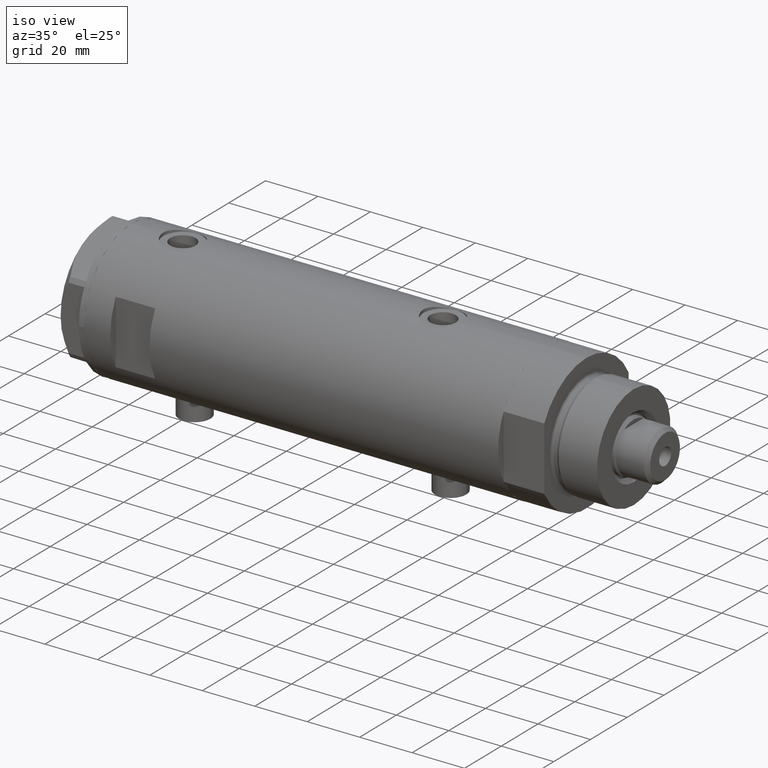
[diagram: clean part render]
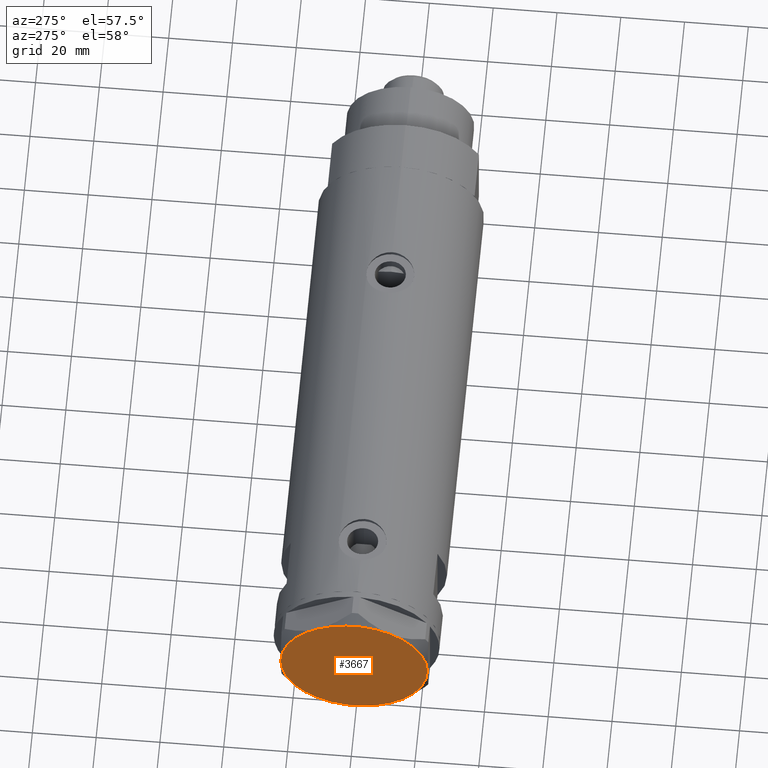
[diagram: tour spotlight — one face highlighted and labeled with its STEP entity id]
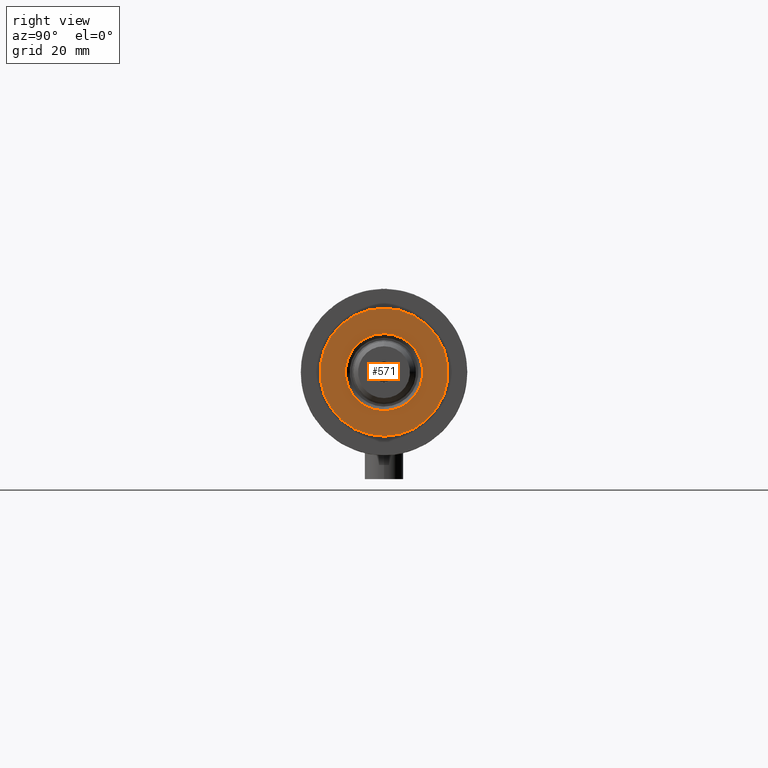
[diagram: tour spotlight — one face highlighted and labeled with its STEP entity id]
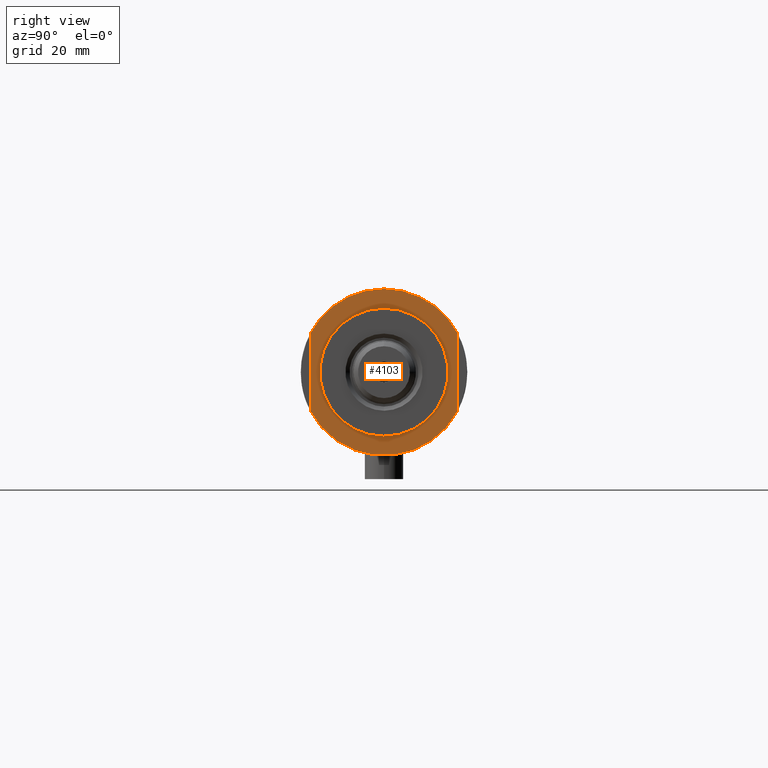
[diagram: tour spotlight — one face highlighted and labeled with its STEP entity id]
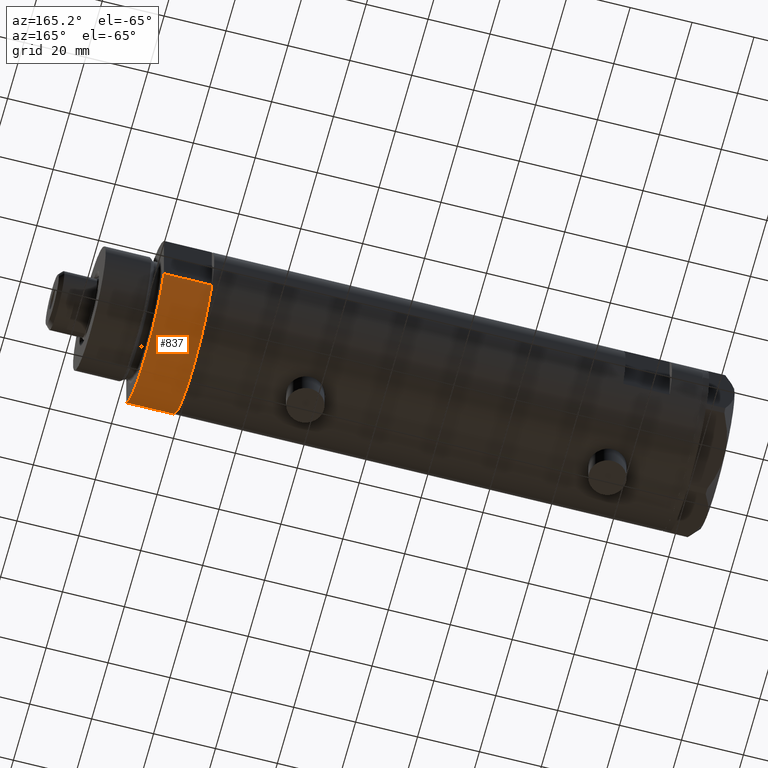
[diagram: tour spotlight — one face highlighted and labeled with its STEP entity id]
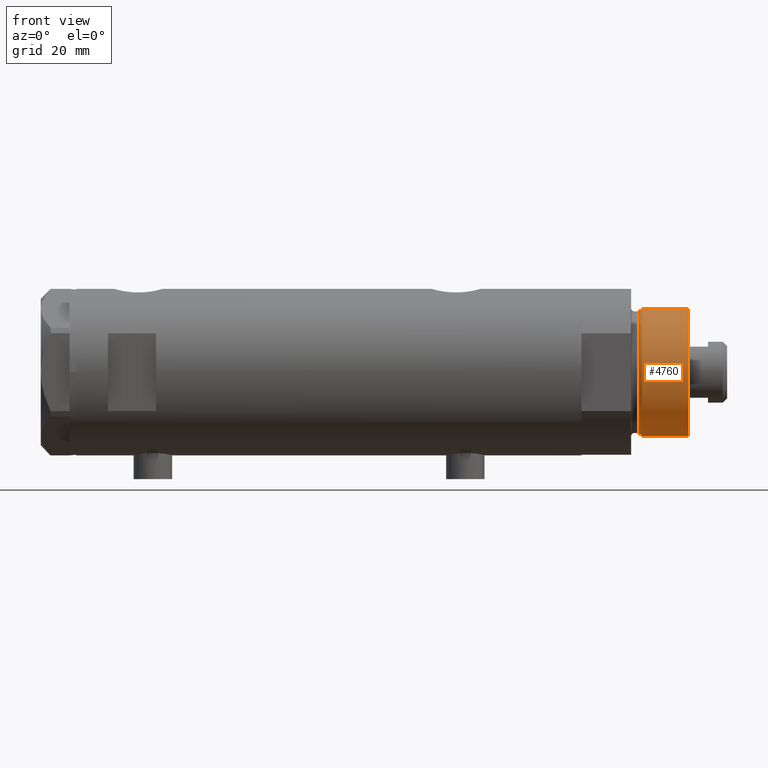
[diagram: tour spotlight — one face highlighted and labeled with its STEP entity id]
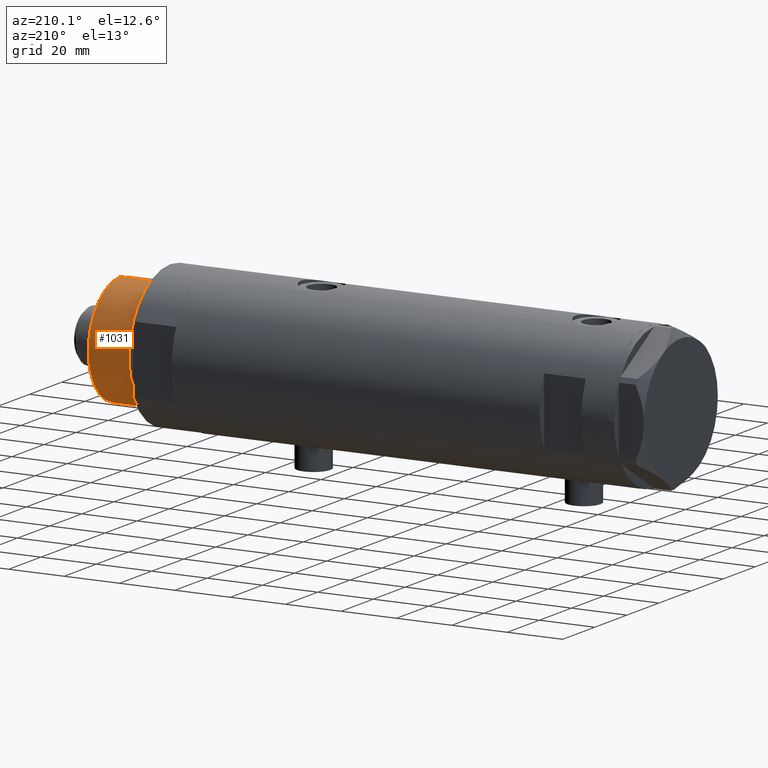
[diagram: tour spotlight — one face highlighted and labeled with its STEP entity id]
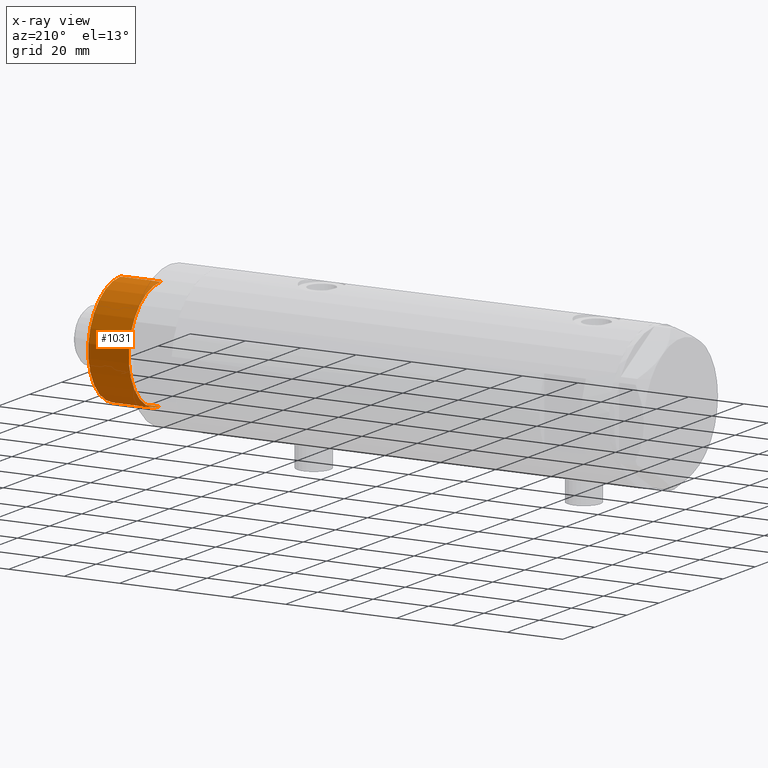
[diagram: x-ray of the same camera — body ghosted, this tour face saturated]
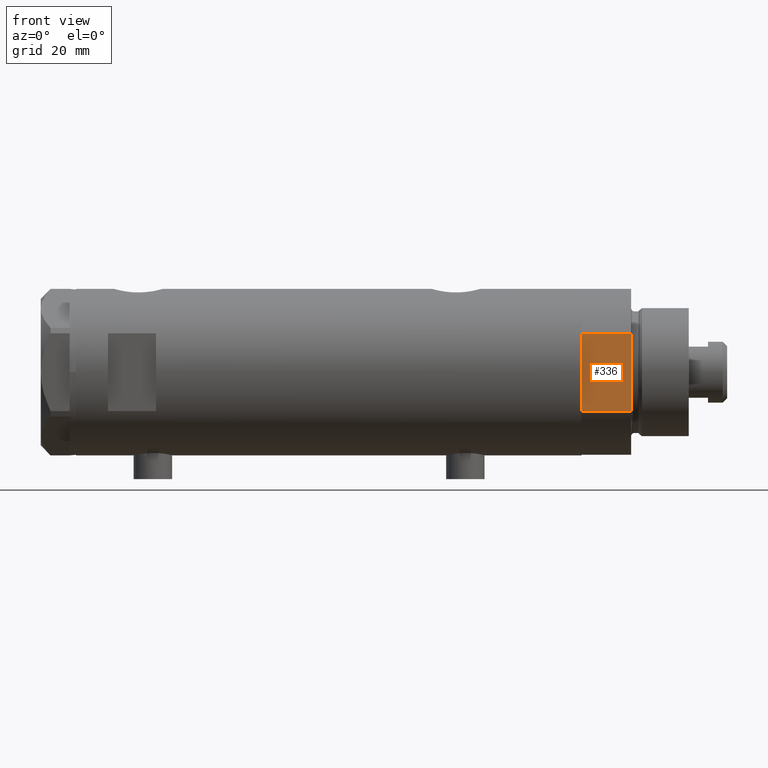
[diagram: tour spotlight — one face highlighted and labeled with its STEP entity id]
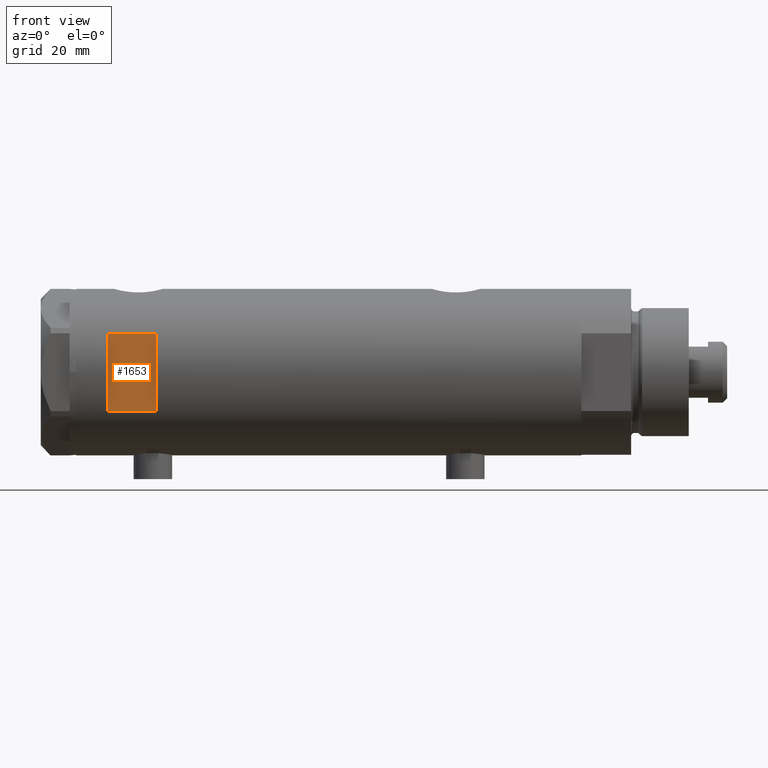
[diagram: tour spotlight — one face highlighted and labeled with its STEP entity id]
A machine part: a face-by-face anatomy tour. The part has 134 B-rep faces; the first image is the clean iso view, then the 8 largest visible faces are spotlighted one at a time (largest first), each with its STEP entity span.

Face 1 — auxiliary view, entity #3667. In plain terms, the highlighted planar face has unit normal (-1, -0, 0).
Definition (entity closure, byte-faithful):
#86 = AXIS2_PLACEMENT_3D ( 'NONE', #2016, #1323, #881 ) ;
#166 = ORIENTED_EDGE ( 'NONE', *, *, #1832, .T. ) ;
#174 = VERTEX_POINT ( 'NONE', #3255 ) ;
#216 = FACE_OUTER_BOUND ( 'NONE', #4402, .T. ) ;
#237 = ORIENTED_EDGE ( 'NONE', *, *, #4425, .T. ) ;
#296 = VERTEX_POINT ( 'NONE', #3295 ) ;
#331 = AXIS2_PLACEMENT_3D ( 'NONE', #1130, #2688, #3395 ) ;
#398 = ORIENTED_EDGE ( 'NONE', *, *, #2606, .T. ) ;
#526 = DIRECTION ( 'NONE',  ( 0.000000000000000000, 0.000000000000000000, 1.000000000000000000 ) ) ;
#578 = DIRECTION ( 'NONE',  ( 1.000000000000000000, 0.000000000000000000, 0.000000000000000000 ) ) ;
#698 = CIRCLE ( 'NONE', #3870, 23.00000000000004619 ) ;
#709 = CIRCLE ( 'NONE', #3477, 23.00000000000004619 ) ;
#881 = DIRECTION ( 'NONE',  ( 1.000000000000000000, 0.000000000000000000, 0.000000000000000000 ) ) ;
#1130 = CARTESIAN_POINT ( 'NONE',  ( 0.000000000000000000, 0.000000000000000000, 9.000000000000000000 ) ) ;
#1167 = DIRECTION ( 'NONE',  ( 1.000000000000000000, 0.000000000000000000, 0.000000000000000000 ) ) ;
#1255 = CARTESIAN_POINT ( 'NONE',  ( 0.000000000000000000, 0.000000000000000000, 9.000000000000000000 ) ) ;
#1323 = DIRECTION ( 'NONE',  ( 0.000000000000000000, 0.000000000000000000, 1.000000000000000000 ) ) ;
#1436 = AXIS2_PLACEMENT_3D ( 'NONE', #3622, #2523, #1736 ) ;
#1479 = CARTESIAN_POINT ( 'NONE',  ( 11.50000000000018296, -19.91858428704203732, 9.000000000000000000 ) ) ;
#1509 = CIRCLE ( 'NONE', #2923, 23.00000000000004619 ) ;
#1616 = CIRCLE ( 'NONE', #3412, 23.00000000000004619 ) ;
#1662 = ORIENTED_EDGE ( 'NONE', *, *, #2304, .T. ) ;
#1736 = DIRECTION ( 'NONE',  ( 1.000000000000000000, 0.000000000000000000, -0.000000000000000000 ) ) ;
#1757 = CIRCLE ( 'NONE', #331, 23.00000000000004619 ) ;
#1832 = EDGE_CURVE ( 'NONE', #2337, #4503, #698, .T. ) ;
#1927 = DIRECTION ( 'NONE',  ( 0.000000000000000000, 0.000000000000000000, 1.000000000000000000 ) ) ;
#1995 = VERTEX_POINT ( 'NONE', #1479 ) ;
#2016 = CARTESIAN_POINT ( 'NONE',  ( 0.000000000000000000, 0.000000000000000000, 9.000000000000000000 ) ) ;
#2075 = CIRCLE ( 'NONE', #86, 23.00000000000004619 ) ;
#2093 = PLANE ( 'NONE',  #1436 ) ;
#2259 = CARTESIAN_POINT ( 'NONE',  ( 0.000000000000000000, 0.000000000000000000, 9.000000000000000000 ) ) ;
#2304 = EDGE_CURVE ( 'NONE', #4503, #296, #1509, .T. ) ;
#2337 = VERTEX_POINT ( 'NONE', #3714 ) ;
#2523 = DIRECTION ( 'NONE',  ( 0.000000000000000000, 0.000000000000000000, 1.000000000000000000 ) ) ;
#2586 = DIRECTION ( 'NONE',  ( 1.000000000000000000, 0.000000000000000000, 0.000000000000000000 ) ) ;
#2606 = EDGE_CURVE ( 'NONE', #296, #4812, #2075, .T. ) ;
#2688 = DIRECTION ( 'NONE',  ( 0.000000000000000000, 0.000000000000000000, 1.000000000000000000 ) ) ;
#2824 = CARTESIAN_POINT ( 'NONE',  ( 0.000000000000000000, 0.000000000000000000, 9.000000000000000000 ) ) ;
#2826 = DIRECTION ( 'NONE',  ( 0.000000000000000000, 0.000000000000000000, 1.000000000000000000 ) ) ;
#2923 = AXIS2_PLACEMENT_3D ( 'NONE', #2824, #3266, #2586 ) ;
#2963 = ORIENTED_EDGE ( 'NONE', *, *, #3447, .T. ) ;
#3198 = CARTESIAN_POINT ( 'NONE',  ( 0.000000000000000000, 0.000000000000000000, 9.000000000000000000 ) ) ;
#3255 = CARTESIAN_POINT ( 'NONE',  ( -11.49999999999990585, -19.91858428704219364, 9.000000000000000000 ) ) ;
#3266 = DIRECTION ( 'NONE',  ( 0.000000000000000000, 0.000000000000000000, 1.000000000000000000 ) ) ;
#3295 = CARTESIAN_POINT ( 'NONE',  ( -11.50000000000004441, 19.91858428704211548, 9.000000000000000000 ) ) ;
#3331 = EDGE_CURVE ( 'NONE', #4812, #174, #709, .T. ) ;
#3334 = CARTESIAN_POINT ( 'NONE',  ( -23.00000000000004619, -8.112498833180673323E-14, 9.000000000000000000 ) ) ;
#3395 = DIRECTION ( 'NONE',  ( 1.000000000000000000, 0.000000000000000000, 0.000000000000000000 ) ) ;
#3412 = AXIS2_PLACEMENT_3D ( 'NONE', #1255, #526, #4253 ) ;
#3447 = EDGE_CURVE ( 'NONE', #1995, #2337, #1757, .T. ) ;
#3477 = AXIS2_PLACEMENT_3D ( 'NONE', #3198, #2826, #578 ) ;
#3622 = CARTESIAN_POINT ( 'NONE',  ( 0.000000000000000000, 0.000000000000000000, 9.000000000000000000 ) ) ;
#3667 = ADVANCED_FACE ( 'NONE', ( #216 ), #2093, .T. ) ;
#3714 = CARTESIAN_POINT ( 'NONE',  ( 22.99999999999995026, 2.373657066004705010E-13, 9.000000000000000000 ) ) ;
#3870 = AXIS2_PLACEMENT_3D ( 'NONE', #2259, #1927, #1167 ) ;
#3976 = ORIENTED_EDGE ( 'NONE', *, *, #3331, .T. ) ;
#4253 = DIRECTION ( 'NONE',  ( 1.000000000000000000, 0.000000000000000000, 0.000000000000000000 ) ) ;
#4402 = EDGE_LOOP ( 'NONE', ( #2963, #166, #1662, #398, #3976, #237 ) ) ;
#4425 = EDGE_CURVE ( 'NONE', #174, #1995, #1616, .T. ) ;
#4503 = VERTEX_POINT ( 'NONE', #4612 ) ;
#4612 = CARTESIAN_POINT ( 'NONE',  ( 11.49999999999990408, 19.91858428704219364, 9.000000000000000000 ) ) ;
#4812 = VERTEX_POINT ( 'NONE', #3334 ) ;

Face 2 — right view, entity #571. In plain terms, the highlighted planar face has unit normal (1, 0, -0).
Definition (entity closure, byte-faithful):
#128 = VERTEX_POINT ( 'NONE', #3809 ) ;
#307 = CIRCLE ( 'NONE', #934, 12.05000000000000426 ) ;
#326 = CIRCLE ( 'NONE', #3091, 19.99999999999999645 ) ;
#392 = CIRCLE ( 'NONE', #2830, 12.05000000000000426 ) ;
#571 = ADVANCED_FACE ( 'NONE', ( #4295, #4342 ), #3557, .T. ) ;
#925 = EDGE_CURVE ( 'NONE', #2129, #128, #307, .T. ) ;
#934 = AXIS2_PLACEMENT_3D ( 'NONE', #3177, #2787, #4279 ) ;
#965 = DIRECTION ( 'NONE',  ( 0.000000000000000000, 0.000000000000000000, 1.000000000000000000 ) ) ;
#1009 = EDGE_CURVE ( 'NONE', #128, #2129, #392, .T. ) ;
#1057 = EDGE_LOOP ( 'NONE', ( #1303, #3403 ) ) ;
#1123 = EDGE_LOOP ( 'NONE', ( #3474, #2548 ) ) ;
#1251 = CARTESIAN_POINT ( 'NONE',  ( 0.000000000000000000, 0.000000000000000000, 33.50000000000000000 ) ) ;
#1260 = DIRECTION ( 'NONE',  ( 0.000000000000000000, 0.000000000000000000, 1.000000000000000000 ) ) ;
#1303 = ORIENTED_EDGE ( 'NONE', *, *, #1009, .T. ) ;
#1722 = DIRECTION ( 'NONE',  ( 1.000000000000000000, 0.000000000000000000, 0.000000000000000000 ) ) ;
#1916 = CIRCLE ( 'NONE', #3468, 19.99999999999999645 ) ;
#1932 = CARTESIAN_POINT ( 'NONE',  ( 19.99999999999999645, 2.449293598294706119E-15, 33.50000000000000000 ) ) ;
#2129 = VERTEX_POINT ( 'NONE', #4497 ) ;
#2231 = EDGE_CURVE ( 'NONE', #4241, #4552, #1916, .T. ) ;
#2548 = ORIENTED_EDGE ( 'NONE', *, *, #2937, .T. ) ;
#2640 = CARTESIAN_POINT ( 'NONE',  ( -19.99999999999999645, 0.000000000000000000, 33.50000000000000000 ) ) ;
#2787 = DIRECTION ( 'NONE',  ( -0.000000000000000000, -0.000000000000000000, -1.000000000000000000 ) ) ;
#2830 = AXIS2_PLACEMENT_3D ( 'NONE', #4849, #4438, #4535 ) ;
#2937 = EDGE_CURVE ( 'NONE', #4552, #4241, #326, .T. ) ;
#3091 = AXIS2_PLACEMENT_3D ( 'NONE', #1251, #3462, #3121 ) ;
#3121 = DIRECTION ( 'NONE',  ( 1.000000000000000000, 0.000000000000000000, 0.000000000000000000 ) ) ;
#3177 = CARTESIAN_POINT ( 'NONE',  ( 0.000000000000000000, 0.000000000000000000, 33.50000000000000000 ) ) ;
#3315 = AXIS2_PLACEMENT_3D ( 'NONE', #4674, #965, #3911 ) ;
#3403 = ORIENTED_EDGE ( 'NONE', *, *, #925, .T. ) ;
#3462 = DIRECTION ( 'NONE',  ( 0.000000000000000000, 0.000000000000000000, 1.000000000000000000 ) ) ;
#3468 = AXIS2_PLACEMENT_3D ( 'NONE', #3503, #1260, #1722 ) ;
#3474 = ORIENTED_EDGE ( 'NONE', *, *, #2231, .T. ) ;
#3503 = CARTESIAN_POINT ( 'NONE',  ( 0.000000000000000000, 0.000000000000000000, 33.50000000000000000 ) ) ;
#3557 = PLANE ( 'NONE',  #3315 ) ;
#3809 = CARTESIAN_POINT ( 'NONE',  ( 12.05000000000000426, 0.000000000000000000, 33.50000000000000000 ) ) ;
#3911 = DIRECTION ( 'NONE',  ( 1.000000000000000000, 0.000000000000000000, -0.000000000000000000 ) ) ;
#4241 = VERTEX_POINT ( 'NONE', #2640 ) ;
#4279 = DIRECTION ( 'NONE',  ( 1.000000000000000000, 0.000000000000000000, 0.000000000000000000 ) ) ;
#4295 = FACE_BOUND ( 'NONE', #1057, .T. ) ;
#4342 = FACE_OUTER_BOUND ( 'NONE', #1123, .T. ) ;
#4438 = DIRECTION ( 'NONE',  ( -0.000000000000000000, -0.000000000000000000, -1.000000000000000000 ) ) ;
#4497 = CARTESIAN_POINT ( 'NONE',  ( -12.05000000000000426, 1.475699392972560823E-15, 33.50000000000000000 ) ) ;
#4535 = DIRECTION ( 'NONE',  ( 1.000000000000000000, 0.000000000000000000, 0.000000000000000000 ) ) ;
#4552 = VERTEX_POINT ( 'NONE', #1932 ) ;
#4674 = CARTESIAN_POINT ( 'NONE',  ( 0.000000000000000000, 0.000000000000000000, 33.50000000000000000 ) ) ;
#4849 = CARTESIAN_POINT ( 'NONE',  ( 0.000000000000000000, 0.000000000000000000, 33.50000000000000000 ) ) ;

Face 3 — right view, entity #4103. In plain terms, the highlighted planar face has unit normal (1, 0, -0).
Definition (entity closure, byte-faithful):
#34 = LINE ( 'NONE', #2347, #1505 ) ;
#339 = CARTESIAN_POINT ( 'NONE',  ( 0.000000000000000000, 0.000000000000000000, 15.50000000000000000 ) ) ;
#544 = EDGE_CURVE ( 'NONE', #4619, #3494, #34, .T. ) ;
#559 = ORIENTED_EDGE ( 'NONE', *, *, #3350, .F. ) ;
#568 = CIRCLE ( 'NONE', #4273, 26.00000000000000355 ) ;
#1007 = CARTESIAN_POINT ( 'NONE',  ( 0.000000000000000000, 0.000000000000000000, 15.50000000000000000 ) ) ;
#1020 = DIRECTION ( 'NONE',  ( 1.000000000000000000, 0.000000000000000000, 0.000000000000000000 ) ) ;
#1169 = CARTESIAN_POINT ( 'NONE',  ( 20.00000000000000000, 0.000000000000000000, 15.50000000000000000 ) ) ;
#1279 = ORIENTED_EDGE ( 'NONE', *, *, #3118, .T. ) ;
#1321 = VERTEX_POINT ( 'NONE', #1169 ) ;
#1331 = CARTESIAN_POINT ( 'NONE',  ( -12.12435565298214613, 23.00000000000000355, 15.50000000000000000 ) ) ;
#1504 = CIRCLE ( 'NONE', #4403, 26.00000000000000355 ) ;
#1505 = VECTOR ( 'NONE', #4231, 1000.000000000000000 ) ;
#1752 = EDGE_CURVE ( 'NONE', #4095, #3033, #2690, .T. ) ;
#1753 = CARTESIAN_POINT ( 'NONE',  ( 0.000000000000000000, 0.000000000000000000, 15.50000000000000000 ) ) ;
#1827 = CARTESIAN_POINT ( 'NONE',  ( -12.12435565298215145, 23.00000000000000355, 15.50000000000000000 ) ) ;
#1884 = CARTESIAN_POINT ( 'NONE',  ( 0.000000000000000000, 0.000000000000000000, 15.50000000000000000 ) ) ;
#2010 = EDGE_CURVE ( 'NONE', #3033, #3494, #1504, .T. ) ;
#2014 = EDGE_LOOP ( 'NONE', ( #4334, #3117, #559, #3588, #2480 ) ) ;
#2020 = AXIS2_PLACEMENT_3D ( 'NONE', #2153, #3945, #3986 ) ;
#2153 = CARTESIAN_POINT ( 'NONE',  ( 0.000000000000000000, 0.000000000000000000, 15.50000000000000000 ) ) ;
#2252 = DIRECTION ( 'NONE',  ( 1.000000000000000000, 0.000000000000000000, 0.000000000000000000 ) ) ;
#2347 = CARTESIAN_POINT ( 'NONE',  ( -12.12435565298215145, -22.99999999999999645, 15.50000000000000000 ) ) ;
#2367 = CARTESIAN_POINT ( 'NONE',  ( 12.12435565298215323, -22.99999999999999645, 15.50000000000000000 ) ) ;
#2395 = AXIS2_PLACEMENT_3D ( 'NONE', #1753, #4035, #1020 ) ;
#2450 = PLANE ( 'NONE',  #2020 ) ;
#2480 = ORIENTED_EDGE ( 'NONE', *, *, #2010, .T. ) ;
#2668 = CARTESIAN_POINT ( 'NONE',  ( -12.12435565298215323, -22.99999999999999645, 15.50000000000000000 ) ) ;
#2690 = CIRCLE ( 'NONE', #4011, 26.00000000000000355 ) ;
#2726 = VERTEX_POINT ( 'NONE', #4804 ) ;
#2821 = CARTESIAN_POINT ( 'NONE',  ( 0.000000000000000000, 0.000000000000000000, 15.50000000000000000 ) ) ;
#2849 = CIRCLE ( 'NONE', #2395, 20.00000000000000000 ) ;
#3033 = VERTEX_POINT ( 'NONE', #4693 ) ;
#3117 = ORIENTED_EDGE ( 'NONE', *, *, #4494, .T. ) ;
#3118 = EDGE_CURVE ( 'NONE', #2726, #1321, #4265, .T. ) ;
#3125 = DIRECTION ( 'NONE',  ( 1.000000000000000000, 0.000000000000000000, 0.000000000000000000 ) ) ;
#3155 = EDGE_LOOP ( 'NONE', ( #4137, #1279 ) ) ;
#3344 = EDGE_CURVE ( 'NONE', #1321, #2726, #2849, .T. ) ;
#3349 = DIRECTION ( 'NONE',  ( 0.000000000000000000, 0.000000000000000000, 1.000000000000000000 ) ) ;
#3350 = EDGE_CURVE ( 'NONE', #4095, #3429, #3665, .T. ) ;
#3371 = DIRECTION ( 'NONE',  ( 0.000000000000000000, 0.000000000000000000, 1.000000000000000000 ) ) ;
#3429 = VERTEX_POINT ( 'NONE', #4493 ) ;
#3494 = VERTEX_POINT ( 'NONE', #2668 ) ;
#3581 = DIRECTION ( 'NONE',  ( 0.000000000000000000, 0.000000000000000000, 1.000000000000000000 ) ) ;
#3588 = ORIENTED_EDGE ( 'NONE', *, *, #1752, .T. ) ;
#3665 = LINE ( 'NONE', #1827, #3881 ) ;
#3669 = FACE_OUTER_BOUND ( 'NONE', #2014, .T. ) ;
#3881 = VECTOR ( 'NONE', #4834, 1000.000000000000000 ) ;
#3945 = DIRECTION ( 'NONE',  ( 0.000000000000000000, 0.000000000000000000, 1.000000000000000000 ) ) ;
#3986 = DIRECTION ( 'NONE',  ( 1.000000000000000000, 0.000000000000000000, -0.000000000000000000 ) ) ;
#4011 = AXIS2_PLACEMENT_3D ( 'NONE', #1884, #3371, #4859 ) ;
#4035 = DIRECTION ( 'NONE',  ( -0.000000000000000000, -0.000000000000000000, -1.000000000000000000 ) ) ;
#4040 = FACE_BOUND ( 'NONE', #3155, .T. ) ;
#4095 = VERTEX_POINT ( 'NONE', #1331 ) ;
#4103 = ADVANCED_FACE ( 'NONE', ( #4040, #3669 ), #2450, .T. ) ;
#4137 = ORIENTED_EDGE ( 'NONE', *, *, #3344, .T. ) ;
#4231 = DIRECTION ( 'NONE',  ( -1.000000000000000000, -0.000000000000000000, -0.000000000000000000 ) ) ;
#4265 = CIRCLE ( 'NONE', #4643, 20.00000000000000000 ) ;
#4273 = AXIS2_PLACEMENT_3D ( 'NONE', #2821, #3581, #3125 ) ;
#4334 = ORIENTED_EDGE ( 'NONE', *, *, #544, .F. ) ;
#4383 = DIRECTION ( 'NONE',  ( -0.000000000000000000, -0.000000000000000000, -1.000000000000000000 ) ) ;
#4403 = AXIS2_PLACEMENT_3D ( 'NONE', #339, #3349, #4757 ) ;
#4493 = CARTESIAN_POINT ( 'NONE',  ( 12.12435565298214790, 23.00000000000000355, 15.50000000000000000 ) ) ;
#4494 = EDGE_CURVE ( 'NONE', #4619, #3429, #568, .T. ) ;
#4619 = VERTEX_POINT ( 'NONE', #2367 ) ;
#4643 = AXIS2_PLACEMENT_3D ( 'NONE', #1007, #4383, #2252 ) ;
#4693 = CARTESIAN_POINT ( 'NONE',  ( -26.00000000000000355, 0.000000000000000000, 15.50000000000000000 ) ) ;
#4757 = DIRECTION ( 'NONE',  ( 1.000000000000000000, 0.000000000000000000, 0.000000000000000000 ) ) ;
#4804 = CARTESIAN_POINT ( 'NONE',  ( -20.00000000000000000, 2.449293598294706513E-15, 15.50000000000000000 ) ) ;
#4834 = DIRECTION ( 'NONE',  ( 1.000000000000000000, 0.000000000000000000, 0.000000000000000000 ) ) ;
#4859 = DIRECTION ( 'NONE',  ( 1.000000000000000000, 0.000000000000000000, 0.000000000000000000 ) ) ;

Face 4 — auxiliary view, entity #837. In plain terms, the highlighted cylindrical surface (partial cylindrical patch) has radius 26 mm, axis along (-1, -0, 0).
Definition (entity closure, byte-faithful):
#115 = CARTESIAN_POINT ( 'NONE',  ( 12.12435565298215323, -22.99999999999999645, 0.000000000000000000 ) ) ;
#281 = DIRECTION ( 'NONE',  ( 0.000000000000000000, 0.000000000000000000, 1.000000000000000000 ) ) ;
#324 = VECTOR ( 'NONE', #1049, 1000.000000000000000 ) ;
#439 = CYLINDRICAL_SURFACE ( 'NONE', #1179, 26.00000000000000355 ) ;
#508 = EDGE_LOOP ( 'NONE', ( #3086, #2619, #3998, #1489 ) ) ;
#568 = CIRCLE ( 'NONE', #4273, 26.00000000000000355 ) ;
#837 = ADVANCED_FACE ( 'NONE', ( #3804 ), #439, .T. ) ;
#1049 = DIRECTION ( 'NONE',  ( -0.000000000000000000, -0.000000000000000000, 1.000000000000000000 ) ) ;
#1179 = AXIS2_PLACEMENT_3D ( 'NONE', #1966, #1577, #2642 ) ;
#1186 = AXIS2_PLACEMENT_3D ( 'NONE', #3664, #281, #2232 ) ;
#1489 = ORIENTED_EDGE ( 'NONE', *, *, #3398, .T. ) ;
#1577 = DIRECTION ( 'NONE',  ( -0.000000000000000000, -0.000000000000000000, -1.000000000000000000 ) ) ;
#1603 = EDGE_CURVE ( 'NONE', #1836, #4733, #4174, .T. ) ;
#1836 = VERTEX_POINT ( 'NONE', #115 ) ;
#1929 = VECTOR ( 'NONE', #4811, 1000.000000000000000 ) ;
#1966 = CARTESIAN_POINT ( 'NONE',  ( 0.000000000000000000, 0.000000000000000000, 15.50000000000000000 ) ) ;
#2232 = DIRECTION ( 'NONE',  ( 1.000000000000000000, 0.000000000000000000, 0.000000000000000000 ) ) ;
#2344 = EDGE_CURVE ( 'NONE', #1836, #4619, #3663, .T. ) ;
#2367 = CARTESIAN_POINT ( 'NONE',  ( 12.12435565298215323, -22.99999999999999645, 15.50000000000000000 ) ) ;
#2540 = LINE ( 'NONE', #3293, #1929 ) ;
#2619 = ORIENTED_EDGE ( 'NONE', *, *, #2344, .F. ) ;
#2642 = DIRECTION ( 'NONE',  ( -1.000000000000000000, 0.000000000000000000, 0.000000000000000000 ) ) ;
#2821 = CARTESIAN_POINT ( 'NONE',  ( 0.000000000000000000, 0.000000000000000000, 15.50000000000000000 ) ) ;
#3086 = ORIENTED_EDGE ( 'NONE', *, *, #4494, .F. ) ;
#3125 = DIRECTION ( 'NONE',  ( 1.000000000000000000, 0.000000000000000000, 0.000000000000000000 ) ) ;
#3281 = CARTESIAN_POINT ( 'NONE',  ( 12.12435565298214080, 23.00000000000000355, 0.000000000000000000 ) ) ;
#3293 = CARTESIAN_POINT ( 'NONE',  ( 12.12435565298215323, 23.00000000000000355, 0.000000000000000000 ) ) ;
#3398 = EDGE_CURVE ( 'NONE', #4733, #3429, #2540, .T. ) ;
#3429 = VERTEX_POINT ( 'NONE', #4493 ) ;
#3581 = DIRECTION ( 'NONE',  ( 0.000000000000000000, 0.000000000000000000, 1.000000000000000000 ) ) ;
#3663 = LINE ( 'NONE', #4417, #324 ) ;
#3664 = CARTESIAN_POINT ( 'NONE',  ( 0.000000000000000000, 0.000000000000000000, 0.000000000000000000 ) ) ;
#3804 = FACE_OUTER_BOUND ( 'NONE', #508, .T. ) ;
#3998 = ORIENTED_EDGE ( 'NONE', *, *, #1603, .T. ) ;
#4174 = CIRCLE ( 'NONE', #1186, 26.00000000000000355 ) ;
#4273 = AXIS2_PLACEMENT_3D ( 'NONE', #2821, #3581, #3125 ) ;
#4417 = CARTESIAN_POINT ( 'NONE',  ( 12.12435565298215323, -22.99999999999999645, 0.000000000000000000 ) ) ;
#4493 = CARTESIAN_POINT ( 'NONE',  ( 12.12435565298214790, 23.00000000000000355, 15.50000000000000000 ) ) ;
#4494 = EDGE_CURVE ( 'NONE', #4619, #3429, #568, .T. ) ;
#4619 = VERTEX_POINT ( 'NONE', #2367 ) ;
#4733 = VERTEX_POINT ( 'NONE', #3281 ) ;
#4811 = DIRECTION ( 'NONE',  ( -0.000000000000000000, -0.000000000000000000, 1.000000000000000000 ) ) ;

Face 5 — front view, entity #4760. In plain terms, the highlighted cylindrical surface (partial cylindrical patch) has radius 20 mm, axis along (-1, -0, 0).
Definition (entity closure, byte-faithful):
#246 = CARTESIAN_POINT ( 'NONE',  ( 0.000000000000000000, 0.000000000000000000, 33.50000000000000000 ) ) ;
#384 = EDGE_CURVE ( 'NONE', #2596, #4618, #3786, .T. ) ;
#485 = DIRECTION ( 'NONE',  ( -0.000000000000000000, -0.000000000000000000, -1.000000000000000000 ) ) ;
#599 = ORIENTED_EDGE ( 'NONE', *, *, #3576, .T. ) ;
#986 = DIRECTION ( 'NONE',  ( -1.000000000000000000, 0.000000000000000000, 0.000000000000000000 ) ) ;
#1088 = DIRECTION ( 'NONE',  ( 1.000000000000000000, 0.000000000000000000, 0.000000000000000000 ) ) ;
#1260 = DIRECTION ( 'NONE',  ( 0.000000000000000000, 0.000000000000000000, 1.000000000000000000 ) ) ;
#1281 = CARTESIAN_POINT ( 'NONE',  ( -19.99999999999999645, 0.000000000000000000, 18.87384048104053846 ) ) ;
#1450 = LINE ( 'NONE', #2194, #4106 ) ;
#1487 = CARTESIAN_POINT ( 'NONE',  ( 0.000000000000000000, 0.000000000000000000, 18.87384048104053846 ) ) ;
#1602 = ORIENTED_EDGE ( 'NONE', *, *, #2231, .F. ) ;
#1673 = AXIS2_PLACEMENT_3D ( 'NONE', #1487, #4122, #1088 ) ;
#1676 = EDGE_LOOP ( 'NONE', ( #2086, #1602, #599, #3032 ) ) ;
#1683 = VECTOR ( 'NONE', #485, 1000.000000000000000 ) ;
#1722 = DIRECTION ( 'NONE',  ( 1.000000000000000000, 0.000000000000000000, 0.000000000000000000 ) ) ;
#1916 = CIRCLE ( 'NONE', #3468, 19.99999999999999645 ) ;
#1932 = CARTESIAN_POINT ( 'NONE',  ( 19.99999999999999645, 2.449293598294706119E-15, 33.50000000000000000 ) ) ;
#1991 = LINE ( 'NONE', #3869, #1683 ) ;
#2086 = ORIENTED_EDGE ( 'NONE', *, *, #3383, .F. ) ;
#2194 = CARTESIAN_POINT ( 'NONE',  ( 19.99999999999999645, 2.449293598294706119E-15, 33.50000000000000000 ) ) ;
#2220 = DIRECTION ( 'NONE',  ( -0.000000000000000000, -0.000000000000000000, -1.000000000000000000 ) ) ;
#2231 = EDGE_CURVE ( 'NONE', #4241, #4552, #1916, .T. ) ;
#2239 = AXIS2_PLACEMENT_3D ( 'NONE', #246, #3677, #986 ) ;
#2576 = CYLINDRICAL_SURFACE ( 'NONE', #2239, 19.99999999999999645 ) ;
#2596 = VERTEX_POINT ( 'NONE', #1281 ) ;
#2640 = CARTESIAN_POINT ( 'NONE',  ( -19.99999999999999645, 0.000000000000000000, 33.50000000000000000 ) ) ;
#3032 = ORIENTED_EDGE ( 'NONE', *, *, #384, .T. ) ;
#3383 = EDGE_CURVE ( 'NONE', #4552, #4618, #1450, .T. ) ;
#3468 = AXIS2_PLACEMENT_3D ( 'NONE', #3503, #1260, #1722 ) ;
#3503 = CARTESIAN_POINT ( 'NONE',  ( 0.000000000000000000, 0.000000000000000000, 33.50000000000000000 ) ) ;
#3576 = EDGE_CURVE ( 'NONE', #4241, #2596, #1991, .T. ) ;
#3677 = DIRECTION ( 'NONE',  ( -0.000000000000000000, -0.000000000000000000, -1.000000000000000000 ) ) ;
#3786 = CIRCLE ( 'NONE', #1673, 19.99999999999999645 ) ;
#3869 = CARTESIAN_POINT ( 'NONE',  ( -19.99999999999999645, 0.000000000000000000, 33.50000000000000000 ) ) ;
#3909 = CARTESIAN_POINT ( 'NONE',  ( 19.99999999999999645, 2.449293598294706119E-15, 18.87384048104053846 ) ) ;
#4106 = VECTOR ( 'NONE', #2220, 1000.000000000000000 ) ;
#4122 = DIRECTION ( 'NONE',  ( -0.000000000000000000, -0.000000000000000000, 1.000000000000000000 ) ) ;
#4241 = VERTEX_POINT ( 'NONE', #2640 ) ;
#4552 = VERTEX_POINT ( 'NONE', #1932 ) ;
#4618 = VERTEX_POINT ( 'NONE', #3909 ) ;
#4744 = FACE_OUTER_BOUND ( 'NONE', #1676, .T. ) ;
#4760 = ADVANCED_FACE ( 'NONE', ( #4744 ), #2576, .T. ) ;

Face 6 — auxiliary view, entity #1031. An x-ray twin of the same camera follows (body ghosted, this face saturated) — the face is partly hidden behind the body. In plain terms, the highlighted cylindrical surface (partial cylindrical patch) has radius 20 mm, axis along (-1, -0, 0).
Definition (entity closure, byte-faithful):
#38 = CARTESIAN_POINT ( 'NONE',  ( 0.000000000000000000, 0.000000000000000000, 18.87384048104053846 ) ) ;
#66 = ORIENTED_EDGE ( 'NONE', *, *, #3576, .F. ) ;
#102 = CIRCLE ( 'NONE', #2324, 19.99999999999999645 ) ;
#326 = CIRCLE ( 'NONE', #3091, 19.99999999999999645 ) ;
#485 = DIRECTION ( 'NONE',  ( -0.000000000000000000, -0.000000000000000000, -1.000000000000000000 ) ) ;
#745 = DIRECTION ( 'NONE',  ( -1.000000000000000000, 0.000000000000000000, 0.000000000000000000 ) ) ;
#1031 = ADVANCED_FACE ( 'NONE', ( #1444 ), #1068, .T. ) ;
#1068 = CYLINDRICAL_SURFACE ( 'NONE', #1417, 19.99999999999999645 ) ;
#1251 = CARTESIAN_POINT ( 'NONE',  ( 0.000000000000000000, 0.000000000000000000, 33.50000000000000000 ) ) ;
#1281 = CARTESIAN_POINT ( 'NONE',  ( -19.99999999999999645, 0.000000000000000000, 18.87384048104053846 ) ) ;
#1417 = AXIS2_PLACEMENT_3D ( 'NONE', #1472, #3711, #745 ) ;
#1444 = FACE_OUTER_BOUND ( 'NONE', #1788, .T. ) ;
#1450 = LINE ( 'NONE', #2194, #4106 ) ;
#1472 = CARTESIAN_POINT ( 'NONE',  ( 0.000000000000000000, 0.000000000000000000, 33.50000000000000000 ) ) ;
#1683 = VECTOR ( 'NONE', #485, 1000.000000000000000 ) ;
#1788 = EDGE_LOOP ( 'NONE', ( #3351, #3102, #3671, #66 ) ) ;
#1907 = DIRECTION ( 'NONE',  ( -0.000000000000000000, -0.000000000000000000, 1.000000000000000000 ) ) ;
#1932 = CARTESIAN_POINT ( 'NONE',  ( 19.99999999999999645, 2.449293598294706119E-15, 33.50000000000000000 ) ) ;
#1991 = LINE ( 'NONE', #3869, #1683 ) ;
#2194 = CARTESIAN_POINT ( 'NONE',  ( 19.99999999999999645, 2.449293598294706119E-15, 33.50000000000000000 ) ) ;
#2220 = DIRECTION ( 'NONE',  ( -0.000000000000000000, -0.000000000000000000, -1.000000000000000000 ) ) ;
#2324 = AXIS2_PLACEMENT_3D ( 'NONE', #38, #1907, #3104 ) ;
#2596 = VERTEX_POINT ( 'NONE', #1281 ) ;
#2640 = CARTESIAN_POINT ( 'NONE',  ( -19.99999999999999645, 0.000000000000000000, 33.50000000000000000 ) ) ;
#2937 = EDGE_CURVE ( 'NONE', #4552, #4241, #326, .T. ) ;
#3091 = AXIS2_PLACEMENT_3D ( 'NONE', #1251, #3462, #3121 ) ;
#3102 = ORIENTED_EDGE ( 'NONE', *, *, #3383, .T. ) ;
#3104 = DIRECTION ( 'NONE',  ( 1.000000000000000000, 0.000000000000000000, 0.000000000000000000 ) ) ;
#3121 = DIRECTION ( 'NONE',  ( 1.000000000000000000, 0.000000000000000000, 0.000000000000000000 ) ) ;
#3351 = ORIENTED_EDGE ( 'NONE', *, *, #2937, .F. ) ;
#3383 = EDGE_CURVE ( 'NONE', #4552, #4618, #1450, .T. ) ;
#3462 = DIRECTION ( 'NONE',  ( 0.000000000000000000, 0.000000000000000000, 1.000000000000000000 ) ) ;
#3576 = EDGE_CURVE ( 'NONE', #4241, #2596, #1991, .T. ) ;
#3671 = ORIENTED_EDGE ( 'NONE', *, *, #4244, .T. ) ;
#3711 = DIRECTION ( 'NONE',  ( -0.000000000000000000, -0.000000000000000000, -1.000000000000000000 ) ) ;
#3869 = CARTESIAN_POINT ( 'NONE',  ( -19.99999999999999645, 0.000000000000000000, 33.50000000000000000 ) ) ;
#3909 = CARTESIAN_POINT ( 'NONE',  ( 19.99999999999999645, 2.449293598294706119E-15, 18.87384048104053846 ) ) ;
#4106 = VECTOR ( 'NONE', #2220, 1000.000000000000000 ) ;
#4241 = VERTEX_POINT ( 'NONE', #2640 ) ;
#4244 = EDGE_CURVE ( 'NONE', #4618, #2596, #102, .T. ) ;
#4552 = VERTEX_POINT ( 'NONE', #1932 ) ;
#4618 = VERTEX_POINT ( 'NONE', #3909 ) ;

Face 7 — front view, entity #336. In plain terms, the highlighted planar face has unit normal (-0, 1, 0).
Definition (entity closure, byte-faithful):
#34 = LINE ( 'NONE', #2347, #1505 ) ;
#115 = CARTESIAN_POINT ( 'NONE',  ( 12.12435565298215323, -22.99999999999999645, 0.000000000000000000 ) ) ;
#276 = LINE ( 'NONE', #3603, #704 ) ;
#324 = VECTOR ( 'NONE', #1049, 1000.000000000000000 ) ;
#336 = ADVANCED_FACE ( 'NONE', ( #2589 ), #1533, .F. ) ;
#544 = EDGE_CURVE ( 'NONE', #4619, #3494, #34, .T. ) ;
#704 = VECTOR ( 'NONE', #2560, 1000.000000000000000 ) ;
#1024 = AXIS2_PLACEMENT_3D ( 'NONE', #4134, #2613, #1477 ) ;
#1049 = DIRECTION ( 'NONE',  ( -0.000000000000000000, -0.000000000000000000, 1.000000000000000000 ) ) ;
#1121 = CARTESIAN_POINT ( 'NONE',  ( -12.12435565298215145, -22.99999999999999645, 0.000000000000000000 ) ) ;
#1289 = ORIENTED_EDGE ( 'NONE', *, *, #544, .T. ) ;
#1477 = DIRECTION ( 'NONE',  ( 0.000000000000000000, -0.000000000000000000, 1.000000000000000000 ) ) ;
#1505 = VECTOR ( 'NONE', #4231, 1000.000000000000000 ) ;
#1533 = PLANE ( 'NONE',  #1024 ) ;
#1618 = EDGE_LOOP ( 'NONE', ( #1289, #2435, #3405, #3666 ) ) ;
#1836 = VERTEX_POINT ( 'NONE', #115 ) ;
#1958 = LINE ( 'NONE', #1121, #2700 ) ;
#2344 = EDGE_CURVE ( 'NONE', #1836, #4619, #3663, .T. ) ;
#2347 = CARTESIAN_POINT ( 'NONE',  ( -12.12435565298215145, -22.99999999999999645, 15.50000000000000000 ) ) ;
#2367 = CARTESIAN_POINT ( 'NONE',  ( 12.12435565298215323, -22.99999999999999645, 15.50000000000000000 ) ) ;
#2435 = ORIENTED_EDGE ( 'NONE', *, *, #2794, .F. ) ;
#2560 = DIRECTION ( 'NONE',  ( -1.000000000000000000, -0.000000000000000000, -0.000000000000000000 ) ) ;
#2589 = FACE_OUTER_BOUND ( 'NONE', #1618, .T. ) ;
#2613 = DIRECTION ( 'NONE',  ( -0.000000000000000000, 1.000000000000000000, 0.000000000000000000 ) ) ;
#2668 = CARTESIAN_POINT ( 'NONE',  ( -12.12435565298215323, -22.99999999999999645, 15.50000000000000000 ) ) ;
#2700 = VECTOR ( 'NONE', #3341, 1000.000000000000000 ) ;
#2722 = EDGE_CURVE ( 'NONE', #1836, #4547, #276, .T. ) ;
#2794 = EDGE_CURVE ( 'NONE', #4547, #3494, #1958, .T. ) ;
#3313 = CARTESIAN_POINT ( 'NONE',  ( -12.12435565298215501, -22.99999999999999645, 0.000000000000000000 ) ) ;
#3341 = DIRECTION ( 'NONE',  ( -0.000000000000000000, -0.000000000000000000, 1.000000000000000000 ) ) ;
#3405 = ORIENTED_EDGE ( 'NONE', *, *, #2722, .F. ) ;
#3494 = VERTEX_POINT ( 'NONE', #2668 ) ;
#3603 = CARTESIAN_POINT ( 'NONE',  ( -12.12435565298215145, -22.99999999999999645, 0.000000000000000000 ) ) ;
#3663 = LINE ( 'NONE', #4417, #324 ) ;
#3666 = ORIENTED_EDGE ( 'NONE', *, *, #2344, .T. ) ;
#4134 = CARTESIAN_POINT ( 'NONE',  ( -12.12435565298215145, -22.99999999999999645, 0.000000000000000000 ) ) ;
#4231 = DIRECTION ( 'NONE',  ( -1.000000000000000000, -0.000000000000000000, -0.000000000000000000 ) ) ;
#4417 = CARTESIAN_POINT ( 'NONE',  ( 12.12435565298215323, -22.99999999999999645, 0.000000000000000000 ) ) ;
#4547 = VERTEX_POINT ( 'NONE', #3313 ) ;
#4619 = VERTEX_POINT ( 'NONE', #2367 ) ;

Face 8 — front view, entity #1653. In plain terms, the highlighted planar face has unit normal (-0, 1, 0).
Definition (entity closure, byte-faithful):
#417 = VECTOR ( 'NONE', #3135, 1000.000000000000000 ) ;
#791 = VECTOR ( 'NONE', #4396, 1000.000000000000000 ) ;
#892 = CARTESIAN_POINT ( 'NONE',  ( -26.00000000000000355, -23.00000000000000355, 53.95000000000002416 ) ) ;
#952 = EDGE_LOOP ( 'NONE', ( #4013, #1731, #1566, #3145 ) ) ;
#960 = VERTEX_POINT ( 'NONE', #2663 ) ;
#1113 = FACE_OUTER_BOUND ( 'NONE', #952, .T. ) ;
#1462 = PLANE ( 'NONE',  #2302 ) ;
#1566 = ORIENTED_EDGE ( 'NONE', *, *, #1980, .T. ) ;
#1653 = ADVANCED_FACE ( 'NONE', ( #1113 ), #1462, .F. ) ;
#1731 = ORIENTED_EDGE ( 'NONE', *, *, #3979, .T. ) ;
#1786 = DIRECTION ( 'NONE',  ( 1.000000000000000000, -0.000000000000000000, -0.000000000000000000 ) ) ;
#1891 = DIRECTION ( 'NONE',  ( -0.000000000000000000, -0.000000000000000000, -1.000000000000000000 ) ) ;
#1980 = EDGE_CURVE ( 'NONE', #2382, #4032, #4447, .T. ) ;
#2157 = VECTOR ( 'NONE', #1786, 1000.000000000000000 ) ;
#2177 = CARTESIAN_POINT ( 'NONE',  ( 12.12435565298214080, -23.00000000000000355, -78.95000000000000284 ) ) ;
#2230 = LINE ( 'NONE', #4452, #3324 ) ;
#2243 = CARTESIAN_POINT ( 'NONE',  ( 12.12435565298214080, -23.00000000000000355, 53.95000000000001705 ) ) ;
#2302 = AXIS2_PLACEMENT_3D ( 'NONE', #2624, #3407, #4142 ) ;
#2382 = VERTEX_POINT ( 'NONE', #2243 ) ;
#2438 = CARTESIAN_POINT ( 'NONE',  ( -12.12435565298214080, -23.00000000000000355, 53.95000000000001705 ) ) ;
#2624 = CARTESIAN_POINT ( 'NONE',  ( -26.00000000000000355, -23.00000000000000355, 68.95000000000003126 ) ) ;
#2663 = CARTESIAN_POINT ( 'NONE',  ( -12.12435565298214080, -23.00000000000000355, 68.95000000000003126 ) ) ;
#3135 = DIRECTION ( 'NONE',  ( 1.000000000000000000, -0.000000000000000000, -0.000000000000000000 ) ) ;
#3145 = ORIENTED_EDGE ( 'NONE', *, *, #4153, .F. ) ;
#3324 = VECTOR ( 'NONE', #1891, 1000.000000000000000 ) ;
#3407 = DIRECTION ( 'NONE',  ( 0.000000000000000000, 1.000000000000000000, 0.000000000000000000 ) ) ;
#3548 = LINE ( 'NONE', #892, #417 ) ;
#3776 = EDGE_CURVE ( 'NONE', #960, #4647, #2230, .T. ) ;
#3979 = EDGE_CURVE ( 'NONE', #4647, #2382, #3548, .T. ) ;
#4013 = ORIENTED_EDGE ( 'NONE', *, *, #3776, .T. ) ;
#4032 = VERTEX_POINT ( 'NONE', #4854 ) ;
#4142 = DIRECTION ( 'NONE',  ( 0.000000000000000000, -0.000000000000000000, 1.000000000000000000 ) ) ;
#4153 = EDGE_CURVE ( 'NONE', #960, #4032, #4708, .T. ) ;
#4396 = DIRECTION ( 'NONE',  ( 0.000000000000000000, 0.000000000000000000, 1.000000000000000000 ) ) ;
#4447 = LINE ( 'NONE', #2177, #791 ) ;
#4452 = CARTESIAN_POINT ( 'NONE',  ( -12.12435565298214080, -23.00000000000000355, -78.95000000000000284 ) ) ;
#4647 = VERTEX_POINT ( 'NONE', #2438 ) ;
#4708 = LINE ( 'NONE', #4738, #2157 ) ;
#4738 = CARTESIAN_POINT ( 'NONE',  ( -26.00000000000000355, -23.00000000000000355, 68.95000000000003126 ) ) ;
#4854 = CARTESIAN_POINT ( 'NONE',  ( 12.12435565298214080, -23.00000000000000355, 68.95000000000003126 ) ) ;